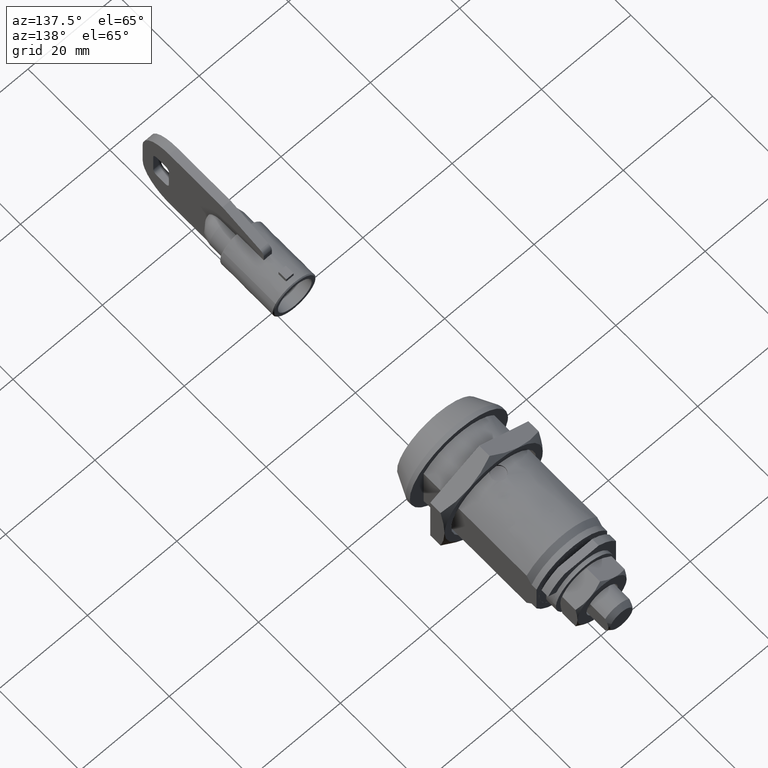
[diagram: clean part render]
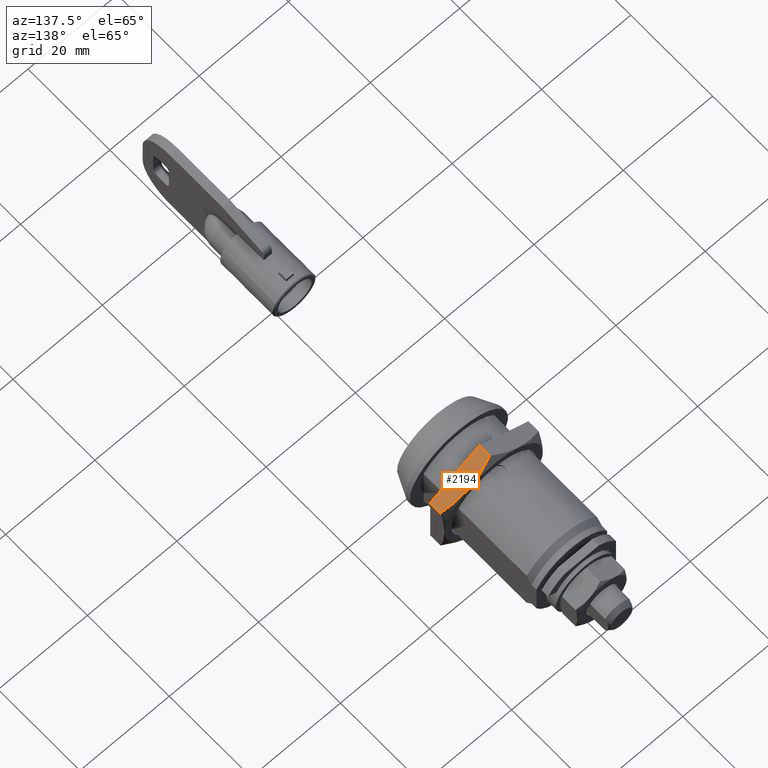
[diagram: same view with one face highlighted and labeled with its STEP entity id]
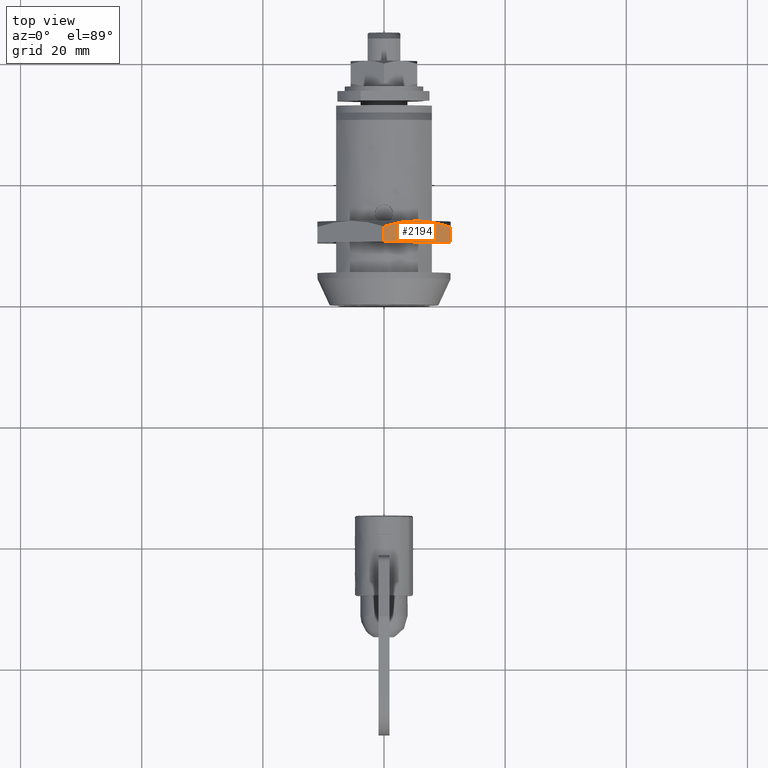
[diagram: same view with one face highlighted and labeled with its STEP entity id]
A machine part, auxiliary view. The second image highlights one B-rep face of the part: STEP entity #2194.
A second angle (top view) of the same face is appended — the face is thin or edge-on in the first view.
In plain terms, the highlighted face is a freeform B-spline surface patch.
Its self-contained STEP definition (entity closure, byte-faithful):
#1751=CARTESIAN_POINT('',(13.799995999999920,-5.499990091247560,9.526284720807569));
#1752=VERTEX_POINT('',#1751);
#1753=CARTESIAN_POINT('',(12.817520201620400,-11.0,6.350860000000210));
#1754=VERTEX_POINT('',#1753);
#1755=CARTESIAN_POINT('',(13.799995999999920,-5.499990091247560,9.526284720807569));
#1756=CARTESIAN_POINT('',(13.799994749558770,-5.730321604262570,9.393303073039100));
#1757=CARTESIAN_POINT('',(13.794385014302261,-5.961770125928159,9.259676521544767));
#1758=CARTESIAN_POINT('',(13.771951554564881,-6.426103740984045,8.991594015438016));
#1759=CARTESIAN_POINT('',(13.754984675489210,-6.659210351825695,8.857010167966713));
#1760=CARTESIAN_POINT('',(13.687823171584320,-7.356197543031708,8.454605373473591));
#1761=CARTESIAN_POINT('',(13.621329663308790,-7.817740028524967,8.188134322974959));
#1762=CARTESIAN_POINT('',(13.364567582090320,-9.194150375308237,7.393465310798209));
#1763=CARTESIAN_POINT('',(13.117240646973389,-10.100833144386730,6.869993003179224));
#1764=CARTESIAN_POINT('',(12.817520201620400,-11.0,6.350860000000210));
#1765=B_SPLINE_CURVE_WITH_KNOTS('',3,(#1755,#1756,#1757,#1758,#1759,#1760,#1761,#1762,#1763,#1764),.UNSPECIFIED.,.F.,.U.,(4,2,2,2,4),(0.500936499805309,0.562500000000000,0.625000000000000,0.750000000000000,1.0),.UNSPECIFIED.);
#1766=EDGE_CURVE('',#1752,#1754,#1765,.T.);
#2026=CARTESIAN_POINT('',(12.817520201620400,0.0,12.701698000000100));
#2027=VERTEX_POINT('',#2026);
#2041=CARTESIAN_POINT('',(12.817520201620400,0.0,12.701698000000100));
#2042=CARTESIAN_POINT('',(13.116867543087031,-0.898044139975422,12.183213195469820));
#2043=CARTESIAN_POINT('',(13.363583882017540,-1.802635666544099,11.660948264432520));
#2044=CARTESIAN_POINT('',(13.619920500502779,-3.173672144131733,10.869381849773470));
#2045=CARTESIAN_POINT('',(13.686364267378311,-3.633048156290738,10.604161610290941));
#2046=CARTESIAN_POINT('',(13.776246804814290,-4.557150075589805,10.070632375294821));
#2047=CARTESIAN_POINT('',(13.799648414832641,-5.021880605564764,9.802320710792538));
#2048=CARTESIAN_POINT('',(13.799994932124960,-5.492982799560413,9.530330373018824));
#2049=CARTESIAN_POINT('',(13.799996210803680,-5.496486316166415,9.528307621528366));
#2050=CARTESIAN_POINT('',(13.799995999999920,-5.499990091247560,9.526284720807569));
#2051=B_SPLINE_CURVE_WITH_KNOTS('',3,(#2041,#2042,#2043,#2044,#2045,#2046,#2047,#2048,#2049,#2050),.UNSPECIFIED.,.F.,.U.,(4,2,2,2,4),(0.0,0.250000000000000,0.375000000000000,0.500000000000000,0.500936499805309),.UNSPECIFIED.);
#2052=EDGE_CURVE('',#2027,#1752,#2051,.T.);
#2157=CARTESIAN_POINT('',(10.299996000000100,0.0,12.701698000000100));
#2158=VERTEX_POINT('',#2157);
#2164=CARTESIAN_POINT('',(12.817520201620400,0.0,12.701698000000100));
#2165=CARTESIAN_POINT('',(10.299996000000100,0.0,12.701698000000100));
#2166=QUASI_UNIFORM_CURVE('',1,(#2164,#2165),.UNSPECIFIED.,.F.,.U.);
#2167=EDGE_CURVE('',#2027,#2158,#2166,.T.);
#2172=CARTESIAN_POINT('',(10.125171388545279,0.549450185200126,13.018922465025190));
#2173=CARTESIAN_POINT('',(10.125171388545279,-11.549450283547790,6.033635478194209));
#2174=CARTESIAN_POINT('',(13.974821331180831,0.549450185200126,13.018922465025190));
#2175=CARTESIAN_POINT('',(13.974821331180831,-11.549450283547790,6.033635478194209));
#2176=B_SPLINE_SURFACE_WITH_KNOTS('',1,1,((#2172,#2174),(#2173,#2175)),.UNSPECIFIED.,.F.,.F.,.U.,(2,2),(2,2),(0.0,13.970598657217900),(0.0,3.849649942635546),.UNSPECIFIED.);
#2177=ORIENTED_EDGE('',*,*,#2052,.F.);
#2178=ORIENTED_EDGE('',*,*,#2167,.T.);
#2179=CARTESIAN_POINT('',(10.299996000000100,-11.0,6.350860000000210));
#2180=VERTEX_POINT('',#2179);
#2181=CARTESIAN_POINT('',(10.299996000000100,-11.0,6.350860000000210));
#2182=CARTESIAN_POINT('',(10.299996000000100,0.0,12.701698000000100));
#2183=QUASI_UNIFORM_CURVE('',1,(#2181,#2182),.UNSPECIFIED.,.F.,.U.);
#2184=EDGE_CURVE('',#2180,#2158,#2183,.T.);
#2185=ORIENTED_EDGE('',*,*,#2184,.F.);
#2186=CARTESIAN_POINT('',(12.817520201620400,-11.0,6.350860000000210));
#2187=CARTESIAN_POINT('',(10.299996000000100,-11.0,6.350860000000210));
#2188=QUASI_UNIFORM_CURVE('',1,(#2186,#2187),.UNSPECIFIED.,.F.,.U.);
#2189=EDGE_CURVE('',#1754,#2180,#2188,.T.);
#2190=ORIENTED_EDGE('',*,*,#2189,.F.);
#2191=ORIENTED_EDGE('',*,*,#1766,.F.);
#2192=EDGE_LOOP('',(#2177,#2178,#2185,#2190,#2191));
#2193=FACE_OUTER_BOUND('',#2192,.T.);
#2194=ADVANCED_FACE('',(#2193),#2176,.T.);